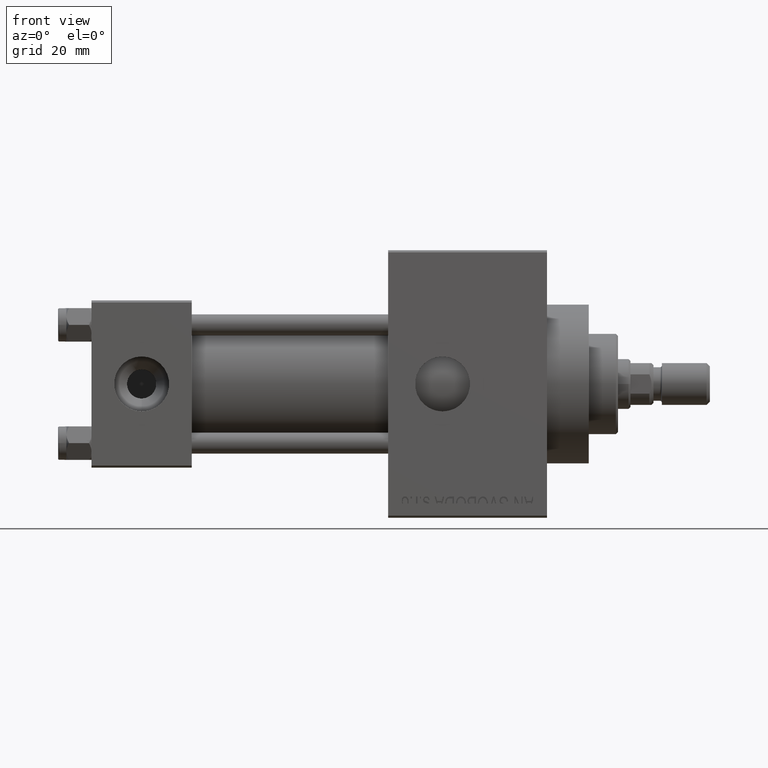
[diagram: clean part render]
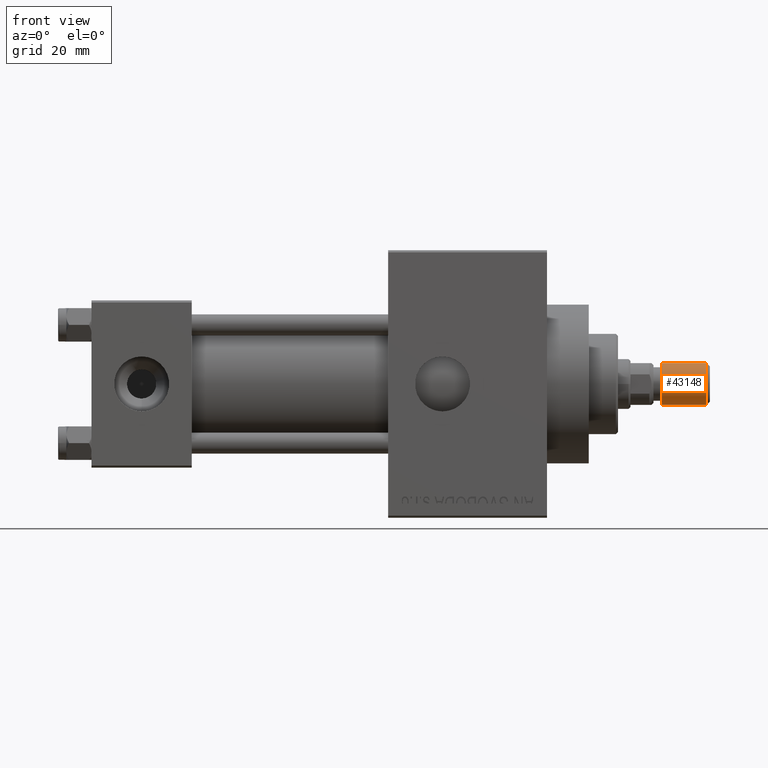
[diagram: same view with one face highlighted and labeled with its STEP entity id]
A machine part, front view. The second image highlights one B-rep face of the part: STEP entity #43148.
In plain terms, the highlighted cylindrical surface (edge-blend (fillet) strip) has radius 5 mm, axis along (1, -0, -0).
Its self-contained STEP definition (entity closure, byte-faithful):
#4474 = ORIENTED_EDGE ( 'NONE', *, *, #18597, .T. ) ;
#4517 = DIRECTION ( 'NONE',  ( -0.000000000000000000, -0.000000000000000000, -1.000000000000000000 ) ) ;
#6532 = VERTEX_POINT ( 'NONE', #43075 ) ;
#6859 = AXIS2_PLACEMENT_3D ( 'NONE', #13275, #9026, #13026 ) ;
#7652 = CARTESIAN_POINT ( 'NONE',  ( 0.000000000000000000, 0.000000000000000000, 11.50000000000000000 ) ) ;
#8154 = DIRECTION ( 'NONE',  ( 0.000000000000000000, 0.000000000000000000, 1.000000000000000000 ) ) ;
#8477 = EDGE_LOOP ( 'NONE', ( #49027, #42296, #4474, #24538 ) ) ;
#9026 = DIRECTION ( 'NONE',  ( -0.000000000000000000, -0.000000000000000000, -1.000000000000000000 ) ) ;
#10751 = CARTESIAN_POINT ( 'NONE',  ( -5.000000000000000000, 0.000000000000000000, 11.50000000000000000 ) ) ;
#11571 = VECTOR ( 'NONE', #18764, 1000.000000000000000 ) ;
#13026 = DIRECTION ( 'NONE',  ( -1.000000000000000000, 0.000000000000000000, 0.000000000000000000 ) ) ;
#13247 = LINE ( 'NONE', #28522, #35074 ) ;
#13275 = CARTESIAN_POINT ( 'NONE',  ( 0.000000000000000000, 0.000000000000000000, 11.50000000000000000 ) ) ;
#14986 = DIRECTION ( 'NONE',  ( 1.000000000000000000, 0.000000000000000000, 0.000000000000000000 ) ) ;
#18290 = CIRCLE ( 'NONE', #47049, 5.000000000000000000 ) ;
#18597 = EDGE_CURVE ( 'NONE', #6532, #24311, #42306, .T. ) ;
#18764 = DIRECTION ( 'NONE',  ( -0.000000000000000000, -0.000000000000000000, -1.000000000000000000 ) ) ;
#19010 = AXIS2_PLACEMENT_3D ( 'NONE', #48780, #38034, #14986 ) ;
#19186 = DIRECTION ( 'NONE',  ( 1.000000000000000000, 0.000000000000000000, 0.000000000000000000 ) ) ;
#20429 = VERTEX_POINT ( 'NONE', #48880 ) ;
#24311 = VERTEX_POINT ( 'NONE', #44835 ) ;
#24538 = ORIENTED_EDGE ( 'NONE', *, *, #24793, .T. ) ;
#24793 = EDGE_CURVE ( 'NONE', #24311, #47404, #35786, .T. ) ;
#25570 = CARTESIAN_POINT ( 'NONE',  ( 5.000000000000000000, 6.123233995736766282E-16, 0.8000000000000020428 ) ) ;
#28522 = CARTESIAN_POINT ( 'NONE',  ( 5.000000000000000000, 6.123233995736766282E-16, 11.50000000000000000 ) ) ;
#30817 = EDGE_CURVE ( 'NONE', #6532, #20429, #18290, .T. ) ;
#31836 = FACE_OUTER_BOUND ( 'NONE', #8477, .T. ) ;
#32307 = CYLINDRICAL_SURFACE ( 'NONE', #6859, 5.000000000000000000 ) ;
#35074 = VECTOR ( 'NONE', #4517, 1000.000000000000000 ) ;
#35786 = CIRCLE ( 'NONE', #19010, 5.000000000000000000 ) ;
#38034 = DIRECTION ( 'NONE',  ( -0.000000000000000000, -0.000000000000000000, 1.000000000000000000 ) ) ;
#42296 = ORIENTED_EDGE ( 'NONE', *, *, #30817, .F. ) ;
#42306 = LINE ( 'NONE', #10751, #11571 ) ;
#43075 = CARTESIAN_POINT ( 'NONE',  ( -5.000000000000000000, 0.000000000000000000, 11.50000000000000000 ) ) ;
#43148 = ADVANCED_FACE ( 'NONE', ( #31836 ), #32307, .T. ) ;
#44835 = CARTESIAN_POINT ( 'NONE',  ( -5.000000000000000000, 0.000000000000000000, 0.8000000000000020428 ) ) ;
#46798 = EDGE_CURVE ( 'NONE', #20429, #47404, #13247, .T. ) ;
#47049 = AXIS2_PLACEMENT_3D ( 'NONE', #7652, #8154, #19186 ) ;
#47404 = VERTEX_POINT ( 'NONE', #25570 ) ;
#48780 = CARTESIAN_POINT ( 'NONE',  ( 0.000000000000000000, 0.000000000000000000, 0.8000000000000020428 ) ) ;
#48880 = CARTESIAN_POINT ( 'NONE',  ( 5.000000000000000000, 6.123233995736766282E-16, 11.50000000000000000 ) ) ;
#49027 = ORIENTED_EDGE ( 'NONE', *, *, #46798, .F. ) ;